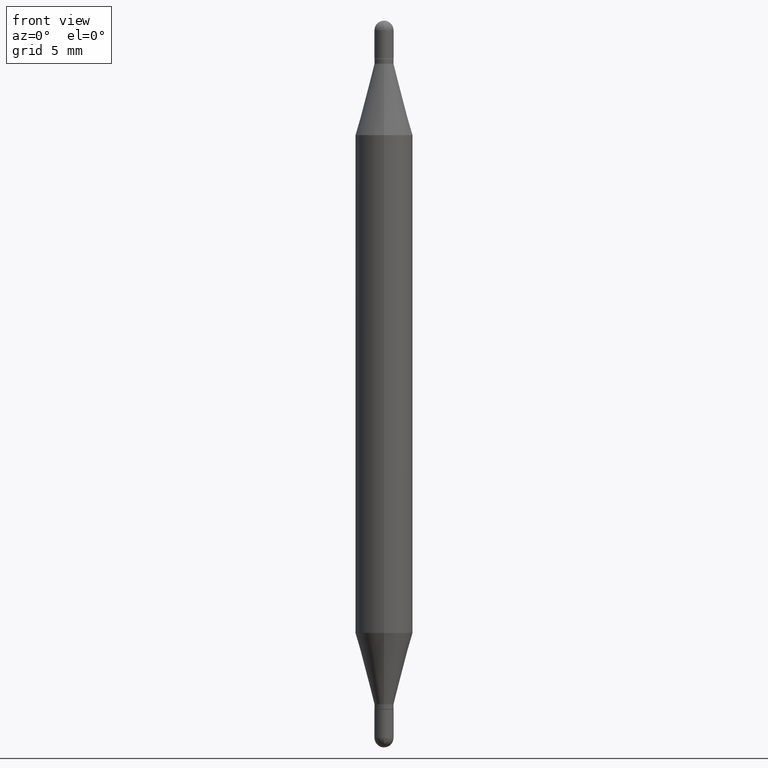
[diagram: clean part render]
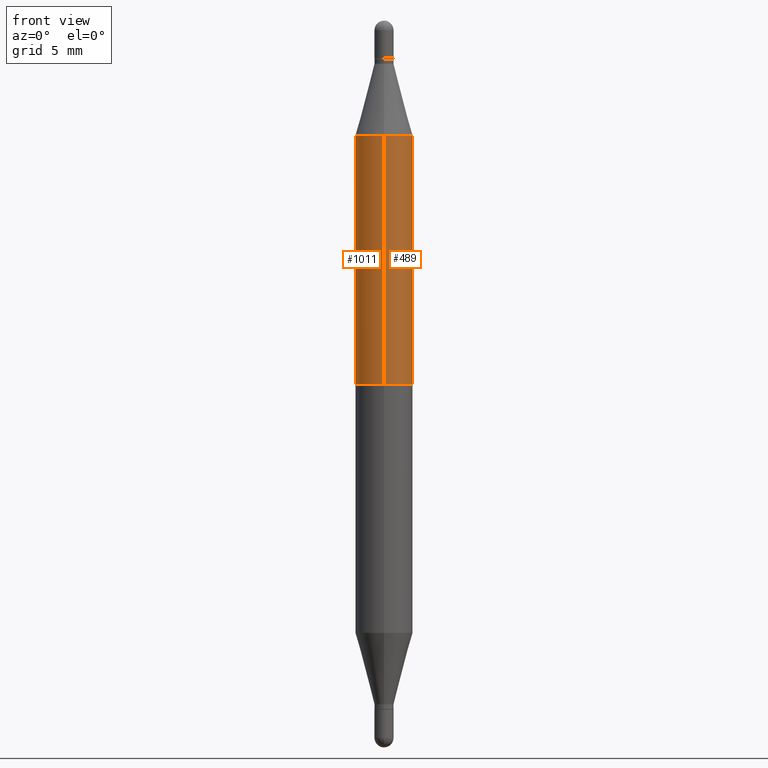
[diagram: same view with one multi-face feature highlighted, each face labeled with its STEP entity id]
A machine part, front view. The highlighted faces form ONE feature: a constant-radius fillet chain: 2 tangent blend faces with common blend radius 1.4999 mm. The faces share edges in the B-rep.
Their STEP definitions:
[1] entity #1011 (Cylinder):
#98 = ORIENTED_EDGE ( 'NONE', *, *, #1057, .F. ) ;
#99 = DIRECTION ( 'NONE',  ( -6.982962677686265922E-15, -1.000000000000000000, 3.469747663417775819E-15 ) ) ;
#101 = CARTESIAN_POINT ( 'NONE',  ( 4.051124067684335201E-16, 0.05904999999999739624, -0.7480500000000002148 ) ) ;
#114 = CARTESIAN_POINT ( 'NONE',  ( -4.123439461173434150E-16, -0.05905000000000085181, -0.2358561992778356042 ) ) ;
#118 = CIRCLE ( 'NONE', #311, 0.05905000000000002608 ) ;
#137 = VERTEX_POINT ( 'NONE', #629 ) ;
#171 = FACE_OUTER_BOUND ( 'NONE', #539, .T. ) ;
#201 = CARTESIAN_POINT ( 'NONE',  ( 0.000000000000000000, -5.214728217544379106E-15, -1.496099999999999985 ) ) ;
#219 = DIRECTION ( 'NONE',  ( -0.000000000000000000, -3.485547902910486918E-15, -1.000000000000000000 ) ) ;
#237 = LINE ( 'NONE', #487, #967 ) ;
#243 = DIRECTION ( 'NONE',  ( -2.440243022076050081E-29, -3.472130846700455674E-15, -1.000000000000000000 ) ) ;
#294 = CIRCLE ( 'NONE', #476, 0.05905000000000001914 ) ;
#311 = AXIS2_PLACEMENT_3D ( 'NONE', #957, #1118, #99 ) ;
#347 = DIRECTION ( 'NONE',  ( -2.440243022076050081E-29, -3.472130846700455674E-15, -1.000000000000000000 ) ) ;
#354 = VECTOR ( 'NONE', #347, 39.37007874015748143 ) ;
#362 = DIRECTION ( 'NONE',  ( -2.440243022076049801E-29, -3.472130846700455674E-15, -1.000000000000000000 ) ) ;
#375 = CARTESIAN_POINT ( 'NONE',  ( 1.825423792663989003E-29, -2.617400737670103415E-15, -0.7480499999999999927 ) ) ;
#400 = ORIENTED_EDGE ( 'NONE', *, *, #961, .F. ) ;
#476 = AXIS2_PLACEMENT_3D ( 'NONE', #375, #219, #813 ) ;
#487 = CARTESIAN_POINT ( 'NONE',  ( -4.123439461173741313E-16, -0.05905000000000523025, -1.496099999999999541 ) ) ;
#495 = AXIS2_PLACEMENT_3D ( 'NONE', #201, #362, #886 ) ;
#498 = VERTEX_POINT ( 'NONE', #101 ) ;
#509 = CYLINDRICAL_SURFACE ( 'NONE', #495, 0.05905000000000001914 ) ;
#527 = EDGE_CURVE ( 'NONE', #794, #498, #530, .T. ) ;
#530 = LINE ( 'NONE', #785, #354 ) ;
#539 = EDGE_LOOP ( 'NONE', ( #400, #750, #98, #835 ) ) ;
#629 = CARTESIAN_POINT ( 'NONE',  ( -4.123439461173558396E-16, -0.05905000000000262816, -0.7480499999999996597 ) ) ;
#740 = CARTESIAN_POINT ( 'NONE',  ( 4.051124067684397324E-16, 0.05904999999999918647, -0.2358561992778360206 ) ) ;
#750 = ORIENTED_EDGE ( 'NONE', *, *, #527, .T. ) ;
#759 = VERTEX_POINT ( 'NONE', #114 ) ;
#785 = CARTESIAN_POINT ( 'NONE',  ( 4.051124067684090161E-16, 0.05904999999999480109, -1.496100000000000207 ) ) ;
#794 = VERTEX_POINT ( 'NONE', #740 ) ;
#813 = DIRECTION ( 'NONE',  ( 0.000000000000000000, 1.000000000000000000, -4.626330217890367758E-15 ) ) ;
#835 = ORIENTED_EDGE ( 'NONE', *, *, #846, .F. ) ;
#846 = EDGE_CURVE ( 'NONE', #759, #137, #237, .T. ) ;
#886 = DIRECTION ( 'NONE',  ( -6.982962677686265922E-15, -1.000000000000000000, 4.626330217890367758E-15 ) ) ;
#957 = CARTESIAN_POINT ( 'NONE',  ( 3.075301140826860747E-29, -8.389968426939312005E-16, -0.2358561992778358263 ) ) ;
#961 = EDGE_CURVE ( 'NONE', #794, #759, #118, .T. ) ;
#967 = VECTOR ( 'NONE', #243, 39.37007874015748143 ) ;
#1011 = ADVANCED_FACE ( 'NONE', ( #171 ), #509, .T. ) ;
#1057 = EDGE_CURVE ( 'NONE', #137, #498, #294, .T. ) ;
#1118 = DIRECTION ( 'NONE',  ( 2.440243022076049801E-29, 3.472130846700455674E-15, 1.000000000000000000 ) ) ;
[2] entity #489 (Cylinder):
#93 = AXIS2_PLACEMENT_3D ( 'NONE', #953, #703, #255 ) ;
#101 = CARTESIAN_POINT ( 'NONE',  ( 4.051124067684335201E-16, 0.05904999999999739624, -0.7480500000000002148 ) ) ;
#114 = CARTESIAN_POINT ( 'NONE',  ( -4.123439461173434150E-16, -0.05905000000000085181, -0.2358561992778356042 ) ) ;
#137 = VERTEX_POINT ( 'NONE', #629 ) ;
#154 = CARTESIAN_POINT ( 'NONE',  ( 3.075301140826860747E-29, -8.389968426939312005E-16, -0.2358561992778358263 ) ) ;
#176 = FACE_OUTER_BOUND ( 'NONE', #206, .T. ) ;
#206 = EDGE_LOOP ( 'NONE', ( #941, #389, #949, #806 ) ) ;
#237 = LINE ( 'NONE', #487, #967 ) ;
#243 = DIRECTION ( 'NONE',  ( -2.440243022076050081E-29, -3.472130846700455674E-15, -1.000000000000000000 ) ) ;
#255 = DIRECTION ( 'NONE',  ( 0.000000000000000000, 1.000000000000000000, -4.626330217890367758E-15 ) ) ;
#259 = CYLINDRICAL_SURFACE ( 'NONE', #377, 0.05905000000000001914 ) ;
#347 = DIRECTION ( 'NONE',  ( -2.440243022076050081E-29, -3.472130846700455674E-15, -1.000000000000000000 ) ) ;
#354 = VECTOR ( 'NONE', #347, 39.37007874015748143 ) ;
#377 = AXIS2_PLACEMENT_3D ( 'NONE', #1036, #597, #863 ) ;
#389 = ORIENTED_EDGE ( 'NONE', *, *, #838, .F. ) ;
#402 = DIRECTION ( 'NONE',  ( 2.440243022076049801E-29, 3.472130846700455674E-15, 1.000000000000000000 ) ) ;
#455 = CIRCLE ( 'NONE', #761, 0.05905000000000002608 ) ;
#487 = CARTESIAN_POINT ( 'NONE',  ( -4.123439461173741313E-16, -0.05905000000000523025, -1.496099999999999541 ) ) ;
#489 = ADVANCED_FACE ( 'NONE', ( #176 ), #259, .T. ) ;
#498 = VERTEX_POINT ( 'NONE', #101 ) ;
#527 = EDGE_CURVE ( 'NONE', #794, #498, #530, .T. ) ;
#530 = LINE ( 'NONE', #785, #354 ) ;
#538 = CIRCLE ( 'NONE', #93, 0.05905000000000001914 ) ;
#597 = DIRECTION ( 'NONE',  ( -2.440243022076049801E-29, -3.472130846700455674E-15, -1.000000000000000000 ) ) ;
#629 = CARTESIAN_POINT ( 'NONE',  ( -4.123439461173558396E-16, -0.05905000000000262816, -0.7480499999999996597 ) ) ;
#633 = EDGE_CURVE ( 'NONE', #498, #137, #538, .T. ) ;
#658 = DIRECTION ( 'NONE',  ( -6.982962677686265922E-15, -1.000000000000000000, 3.469747663417775819E-15 ) ) ;
#703 = DIRECTION ( 'NONE',  ( -0.000000000000000000, -3.485547902910486918E-15, -1.000000000000000000 ) ) ;
#740 = CARTESIAN_POINT ( 'NONE',  ( 4.051124067684397324E-16, 0.05904999999999918647, -0.2358561992778360206 ) ) ;
#759 = VERTEX_POINT ( 'NONE', #114 ) ;
#761 = AXIS2_PLACEMENT_3D ( 'NONE', #154, #402, #658 ) ;
#785 = CARTESIAN_POINT ( 'NONE',  ( 4.051124067684090161E-16, 0.05904999999999480109, -1.496100000000000207 ) ) ;
#794 = VERTEX_POINT ( 'NONE', #740 ) ;
#806 = ORIENTED_EDGE ( 'NONE', *, *, #633, .F. ) ;
#838 = EDGE_CURVE ( 'NONE', #759, #794, #455, .T. ) ;
#846 = EDGE_CURVE ( 'NONE', #759, #137, #237, .T. ) ;
#863 = DIRECTION ( 'NONE',  ( -6.982962677686265922E-15, -1.000000000000000000, 4.626330217890367758E-15 ) ) ;
#941 = ORIENTED_EDGE ( 'NONE', *, *, #527, .F. ) ;
#949 = ORIENTED_EDGE ( 'NONE', *, *, #846, .T. ) ;
#953 = CARTESIAN_POINT ( 'NONE',  ( 1.825423792663989003E-29, -2.617400737670103415E-15, -0.7480499999999999927 ) ) ;
#967 = VECTOR ( 'NONE', #243, 39.37007874015748143 ) ;
#1036 = CARTESIAN_POINT ( 'NONE',  ( 0.000000000000000000, -5.214728217544379106E-15, -1.496099999999999985 ) ) ;